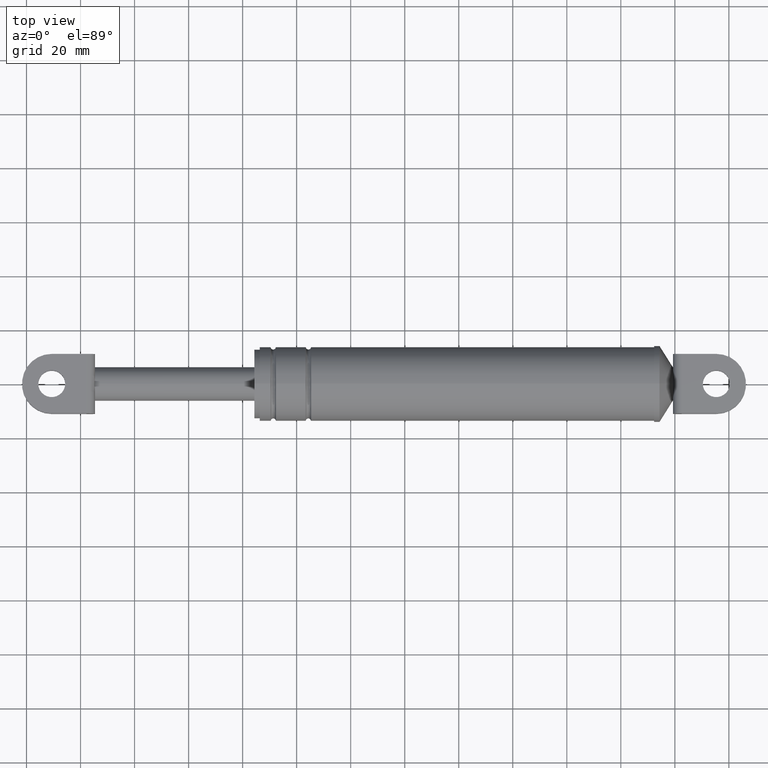
[diagram: clean part render]
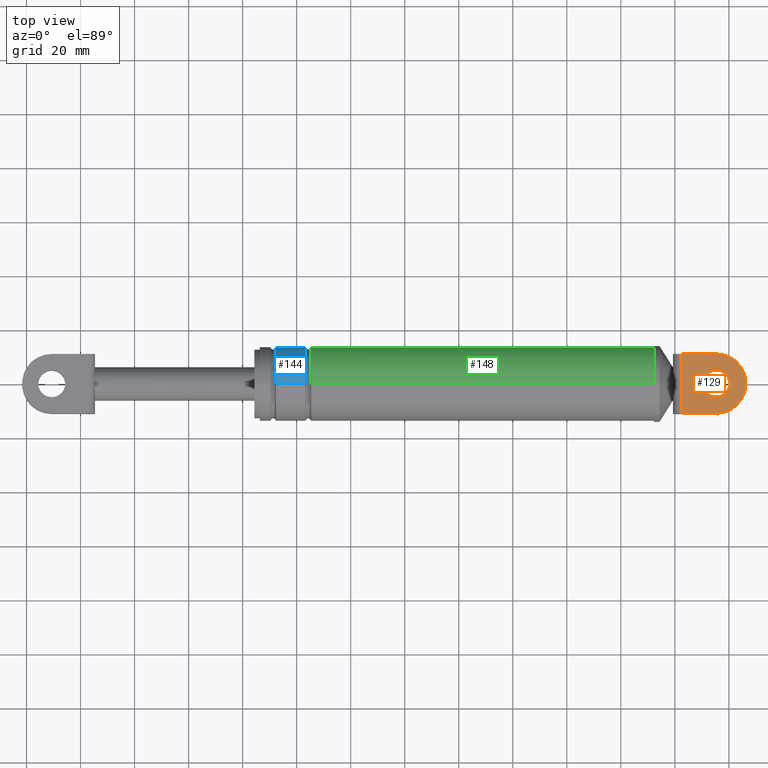
[diagram: same view with three faces highlighted in distinct colors, each labeled with its STEP entity id]
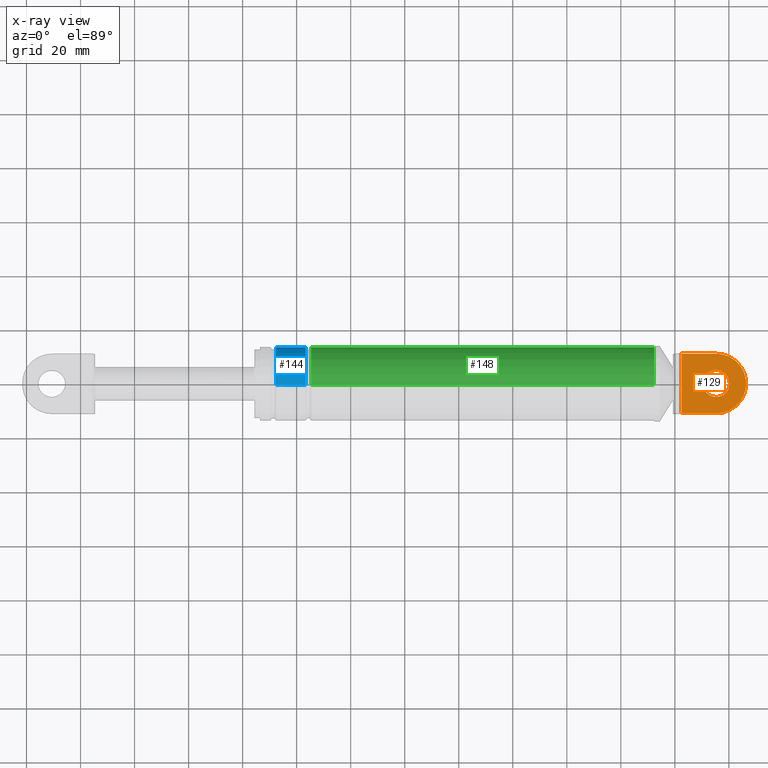
[diagram: x-ray of the same camera — body ghosted, the three highlighted faces saturated]
A machine part, top view with three faces highlighted in distinct colors.
The next image is the same camera in x-ray (body ghosted, the three faces saturated) — at least one of them is partly hidden behind the body in this view.
Their STEP definitions:

[orange] entity #129 — the highlighted planar face has unit normal (0, 0, 1).
#129=ADVANCED_FACE('',(#350,#351),#349,.T.);
#349=PLANE('',#1325);
#350=FACE_OUTER_BOUND('',#1326,.T.);
#351=FACE_BOUND('',#1327,.T.);
#1322=CARTESIAN_POINT('',(3.48715894405E+002,-1.32000011519E+001,1.28520539859E+002));
#1323=DIRECTION('',(0.00000000000E+000,-0.00000000000E+000,1.00000000000E+000));
#1324=DIRECTION('',(0.00000000000E+000,1.00000000000E+000,0.00000000000E+000));
#1325=AXIS2_PLACEMENT_3D('',#1322,#1323,#1324);
#1326=EDGE_LOOP('',(#2051,#2052,#2053,#2054,#2055,#2056));
#1327=EDGE_LOOP('',(#2057,#2058));
#2051=ORIENTED_EDGE('',*,*,#2309,.F.);
#2052=ORIENTED_EDGE('',*,*,#2333,.T.);
#2053=ORIENTED_EDGE('',*,*,#2328,.T.);
#2054=ORIENTED_EDGE('',*,*,#2325,.T.);
#2055=ORIENTED_EDGE('',*,*,#2303,.T.);
#2056=ORIENTED_EDGE('',*,*,#2336,.T.);
#2057=ORIENTED_EDGE('',*,*,#2339,.F.);
#2058=ORIENTED_EDGE('',*,*,#2340,.F.);
#2303=EDGE_CURVE('',#2588,#2581,#2589,.T.);
#2309=EDGE_CURVE('',#2623,#2630,#2631,.T.);
#2325=EDGE_CURVE('',#2738,#2588,#2739,.T.);
#2328=EDGE_CURVE('',#2758,#2738,#2759,.T.);
#2333=EDGE_CURVE('',#2623,#2758,#2791,.T.);
#2336=EDGE_CURVE('',#2581,#2630,#2809,.T.);
#2339=EDGE_CURVE('',#2827,#2828,#2829,.T.);
#2340=EDGE_CURVE('',#2828,#2827,#2835,.T.);
#2581=VERTEX_POINT('',#3567);
#2588=VERTEX_POINT('',#3571);
#2589=LINE('',#3572,#3573);
#2623=VERTEX_POINT('',#3593);
#2630=VERTEX_POINT('',#3598);
#2631=LINE('',#3599,#3600);
#2738=VERTEX_POINT('',#3668);
#2739=LINE('',#3669,#3670);
#2758=VERTEX_POINT('',#3680);
#2759=(BOUNDED_CURVE() B_SPLINE_CURVE(3,(#3681,#3682,#3683,#3684,#3685,#3686,#3687,#3688,#3689,#3690),.UNSPECIFIED.,.F.,.F.) B_SPLINE_CURVE_WITH_KNOTS((4,2,2,2,4),(0.00000000000E+000,1.21207515280E-003,2.42415030559E-003,3.63622545839E-003,4.84830061118E-003),.UNSPECIFIED.) CURVE() GEOMETRIC_REPRESENTATION_ITEM() RATIONAL_B_SPLINE_CURVE((1.00000000000E+000,1.00000000000E+000,1.00000000000E+000,1.00000000000E+000,1.00000000000E+000,1.00000000000E+000,1.00000000000E+000,1.00000000000E+000,1.00000000000E+000,1.00000000000E+000)) REPRESENTATION_ITEM('') );
#2791=LINE('',#3708,#3709);
#2809=CIRCLE('',#3722,1.10000000000E+001);
#2827=VERTEX_POINT('',#3731);
#2828=VERTEX_POINT('',#3732);
#2829=CIRCLE('',#3736,5.00000000000E+000);
#2835=CIRCLE('',#3740,5.00000000000E+000);
#3567=CARTESIAN_POINT('',(3.35331796069E+002,-1.10000000000E+001,1.28520539859E+002));
#3571=CARTESIAN_POINT('',(3.22531797029E+002,-1.10000000000E+001,1.28520539859E+002));
#3572=CARTESIAN_POINT('',(3.22531797029E+002,-1.10000000000E+001,1.28520539859E+002));
#3573=VECTOR('',#3574,1.27999990401E+001);
#3574=DIRECTION('',(1.00000000000E+000,0.00000000000E+000,0.00000000000E+000));
#3593=CARTESIAN_POINT('',(3.22531797029E+002,1.10000000000E+001,1.28520539859E+002));
#3598=CARTESIAN_POINT('',(3.35331796069E+002,1.10000000000E+001,1.28520539859E+002));
#3599=CARTESIAN_POINT('',(3.22531797029E+002,1.10000000000E+001,1.28520539859E+002));
#3600=VECTOR('',#3601,1.27999990401E+001);
#3601=DIRECTION('',(1.00000000000E+000,0.00000000000E+000,0.00000000000E+000));
#3668=CARTESIAN_POINT('',(3.22531797029E+002,-2.42391066068E+000,1.28520539859E+002));
#3669=CARTESIAN_POINT('',(3.22531797029E+002,-2.42391066068E+000,1.28520539859E+002));
#3670=VECTOR('',#3671,8.57608933932E+000);
#3671=DIRECTION('',(0.00000000000E+000,-1.00000000000E+000,0.00000000000E+000));
#3680=CARTESIAN_POINT('',(3.22531797029E+002,2.42391066068E+000,1.28520539859E+002));
#3681=CARTESIAN_POINT('',(3.22531797029E+002,2.42391066068E+000,1.28520539859E+002));
#3682=CARTESIAN_POINT('',(3.22531797029E+002,2.01983373493E+000,1.28520539859E+002));
#3683=CARTESIAN_POINT('',(3.22519690399E+002,1.61595082018E+000,1.28520539859E+002));
#3684=CARTESIAN_POINT('',(3.22498983566E+002,8.08128799520E-001,1.28520539859E+002));
#3685=CARTESIAN_POINT('',(3.22490825770E+002,4.04182603972E-001,1.28520539859E+002));
#3686=CARTESIAN_POINT('',(3.22490823261E+002,-4.03971207306E-001,1.28520539859E+002));
#3687=CARTESIAN_POINT('',(3.22498980300E+002,-8.07992361936E-001,1.28520539859E+002));
#3688=CARTESIAN_POINT('',(3.22519688236E+002,-1.61587544957E+000,1.28520539859E+002));
#3689=CARTESIAN_POINT('',(3.22531797029E+002,-2.01978594962E+000,1.28520539859E+002));
#3690=CARTESIAN_POINT('',(3.22531797029E+002,-2.42391066068E+000,1.28520539859E+002));
#3708=CARTESIAN_POINT('',(3.22531797029E+002,1.10000000000E+001,1.28520539859E+002));
#3709=VECTOR('',#3710,8.57608933932E+000);
#3710=DIRECTION('',(0.00000000000E+000,-1.00000000000E+000,0.00000000000E+000));
#3719=CARTESIAN_POINT('',(3.35331797029E+002,0.00000000000E+000,1.28520539859E+002));
#3720=DIRECTION('',(9.13508299739E-016,-7.97186270143E-023,1.00000000000E+000));
#3721=DIRECTION('',(-8.72664508346E-008,-1.00000000000E+000,1.11868806813E-031));
#3722=AXIS2_PLACEMENT_3D('',#3719,#3720,#3721);
#3731=CARTESIAN_POINT('',(3.30331797029E+002,-5.92118946467E-016,1.28520539859E+002));
#3732=CARTESIAN_POINT('',(3.40331797029E+002,-6.12323399574E-016,1.28520539859E+002));
#3733=CARTESIAN_POINT('',(3.35331797029E+002,-3.06161699787E-016,1.28520539859E+002));
#3734=DIRECTION('',(-1.23051628678E-031,2.00971834712E-015,1.00000000000E+000));
#3735=DIRECTION('',(1.00000000000E+000,6.12282954249E-017,-0.00000000000E+000));
#3736=AXIS2_PLACEMENT_3D('',#3733,#3734,#3735);
#3737=CARTESIAN_POINT('',(3.35331797029E+002,-3.06161699787E-016,1.28520539859E+002));
#3738=DIRECTION('',(-1.23051628678E-031,2.00971834712E-015,1.00000000000E+000));
#3739=DIRECTION('',(1.00000000000E+000,6.12282954249E-017,-0.00000000000E+000));
#3740=AXIS2_PLACEMENT_3D('',#3737,#3738,#3739);

[blue] entity #144 — the highlighted cylindrical surface (partial cylindrical patch) has radius 13.7 mm, axis along (-1, 0, 0).
#144=ADVANCED_FACE('',(#503),#502,.T.);
#502=CYLINDRICAL_SURFACE('',#1477,1.37000000000E+001);
#503=FACE_OUTER_BOUND('',#1478,.T.);
#1474=CARTESIAN_POINT('',(1.71231797029E+002,6.37158320696E-015,1.19820542859E+002));
#1475=DIRECTION('',(-1.00000000000E+000,1.46694769862E-015,3.54452212500E-031));
#1476=DIRECTION('',(1.03669887834E-030,4.65079066202E-016,1.00000000000E+000));
#1477=AXIS2_PLACEMENT_3D('',#1474,#1475,#1476);
#1478=EDGE_LOOP('',(#2125,#2126,#2127,#2128));
#2125=ORIENTED_EDGE('',*,*,#2360,.F.);
#2126=ORIENTED_EDGE('',*,*,#2363,.F.);
#2127=ORIENTED_EDGE('',*,*,#2364,.T.);
#2128=ORIENTED_EDGE('',*,*,#2365,.T.);
#2360=EDGE_CURVE('',#2957,#2964,#2965,.T.);
#2363=EDGE_CURVE('',#2983,#2957,#2984,.T.);
#2364=EDGE_CURVE('',#2983,#2990,#2991,.T.);
#2365=EDGE_CURVE('',#2990,#2964,#2997,.T.);
#2957=VERTEX_POINT('',#3801);
#2964=VERTEX_POINT('',#3807);
#2965=CIRCLE('',#3811,1.37000000000E+001);
#2983=VERTEX_POINT('',#3823);
#2984=(BOUNDED_CURVE() B_SPLINE_CURVE(1,(#3824,#3825),.UNSPECIFIED.,.F.,.F.) B_SPLINE_CURVE_WITH_KNOTS((2,2),(8.33333343261E-002,9.16666667006E-001),.UNSPECIFIED.) CURVE() GEOMETRIC_REPRESENTATION_ITEM() RATIONAL_B_SPLINE_CURVE((1.00000000000E+000,1.00000000000E+000)) REPRESENTATION_ITEM('') );
#2990=VERTEX_POINT('',#3826);
#2991=CIRCLE('',#3830,1.37000000000E+001);
#2997=(BOUNDED_CURVE() B_SPLINE_CURVE(1,(#3831,#3832),.UNSPECIFIED.,.F.,.F.) B_SPLINE_CURVE_WITH_KNOTS((2,2),(8.33333333333E-002,9.16666666667E-001),.UNSPECIFIED.) CURVE() GEOMETRIC_REPRESENTATION_ITEM() RATIONAL_B_SPLINE_CURVE((7.50000000000E-001,7.50000000000E-001)) REPRESENTATION_ITEM('') );
#3801=CARTESIAN_POINT('',(1.72331797029E+002,2.30926389122E-014,1.33520542859E+002));
#3807=CARTESIAN_POINT('',(1.72331797029E+002,7.52689430633E-015,1.06120542859E+002));
#3808=CARTESIAN_POINT('',(1.72331797029E+002,1.12117697108E-014,1.19820542859E+002));
#3809=DIRECTION('',(-1.00000000000E+000,0.00000000000E+000,0.00000000000E+000));
#3810=DIRECTION('',(-0.00000000000E+000,-8.35518852861E-016,-1.00000000000E+000));
#3811=AXIS2_PLACEMENT_3D('',#3808,#3809,#3810);
#3823=CARTESIAN_POINT('',(1.83331797029E+002,-5.32907051820E-015,1.33520542859E+002));
#3824=CARTESIAN_POINT('',(1.83331797016E+002,-5.00690072020E-015,1.33520542859E+002));
#3825=CARTESIAN_POINT('',(1.72331797024E+002,1.11295239520E-014,1.33520542859E+002));
#3826=CARTESIAN_POINT('',(1.83331797029E+002,7.52689430633E-015,1.06120542859E+002));
#3827=CARTESIAN_POINT('',(1.83331797029E+002,1.12117697108E-014,1.19820542859E+002));
#3828=DIRECTION('',(-1.00000000000E+000,1.46694769862E-015,1.38016011913E-030));
#3829=DIRECTION('',(-2.60582257749E-030,-8.35518852861E-016,-1.00000000000E+000));
#3830=AXIS2_PLACEMENT_3D('',#3827,#3828,#3829);
#3831=CARTESIAN_POINT('',(1.83331797029E+002,-1.85037170771E-014,1.06120542859E+002));
#3832=CARTESIAN_POINT('',(1.72331797029E+002,-2.22044604925E-015,1.06120542859E+002));

[green] entity #148 — the highlighted cylindrical surface (partial cylindrical patch) has radius 13.7 mm, axis along (-1, -0, -0).
#148=ADVANCED_FACE('',(#543),#542,.T.);
#542=CYLINDRICAL_SURFACE('',#1559,1.37000000000E+001);
#543=FACE_OUTER_BOUND('',#1560,.T.);
#1556=CARTESIAN_POINT('',(1.75331797029E+002,-1.11130927453E-013,1.19820542859E+002));
#1557=DIRECTION('',(-1.00000000000E+000,-1.46694769862E-015,-3.54452212500E-031));
#1558=DIRECTION('',(1.15450556906E-029,-8.11174652940E-015,1.00000000000E+000));
#1559=AXIS2_PLACEMENT_3D('',#1556,#1557,#1558);
#1560=EDGE_LOOP('',(#2141,#2142,#2143,#2144));
#2141=ORIENTED_EDGE('',*,*,#2368,.F.);
#2142=ORIENTED_EDGE('',*,*,#2371,.F.);
#2143=ORIENTED_EDGE('',*,*,#2315,.T.);
#2144=ORIENTED_EDGE('',*,*,#2372,.T.);
#2315=EDGE_CURVE('',#2670,#2671,#2672,.T.);
#2368=EDGE_CURVE('',#3009,#3016,#3017,.T.);
#2371=EDGE_CURVE('',#2670,#3009,#3035,.T.);
#2372=EDGE_CURVE('',#2671,#3016,#3041,.T.);
#2670=VERTEX_POINT('',#3622);
#2671=VERTEX_POINT('',#3623);
#2672=CIRCLE('',#3627,1.37000000000E+001);
#3009=VERTEX_POINT('',#3837);
#3016=VERTEX_POINT('',#3843);
#3017=CIRCLE('',#3847,1.37000000000E+001);
#3035=(BOUNDED_CURVE() B_SPLINE_CURVE(1,(#3859,#3860),.UNSPECIFIED.,.F.,.F.) B_SPLINE_CURVE_WITH_KNOTS((2,2),(6.80272107940E-002,9.31972788954E-001),.UNSPECIFIED.) CURVE() GEOMETRIC_REPRESENTATION_ITEM() RATIONAL_B_SPLINE_CURVE((1.00000000000E+000,1.00000000000E+000)) REPRESENTATION_ITEM('') );
#3041=(BOUNDED_CURVE() B_SPLINE_CURVE(1,(#3861,#3862),.UNSPECIFIED.,.F.,.F.) B_SPLINE_CURVE_WITH_KNOTS((2,2),(6.80272108844E-002,9.31972789116E-001),.UNSPECIFIED.) CURVE() GEOMETRIC_REPRESENTATION_ITEM() RATIONAL_B_SPLINE_CURVE((7.50000000000E-001,7.50000000000E-001)) REPRESENTATION_ITEM('') );
#3622=CARTESIAN_POINT('',(3.12331797029E+002,2.30926389122E-014,1.33520542859E+002));
#3623=CARTESIAN_POINT('',(3.12331797029E+002,7.52689430633E-015,1.06120542859E+002));
#3624=CARTESIAN_POINT('',(3.12331797029E+002,1.12117697108E-014,1.19820542859E+002));
#3625=DIRECTION('',(-1.00000000000E+000,1.46694769862E-015,1.38016011913E-030));
#3626=DIRECTION('',(-2.60582257749E-030,-8.35518852861E-016,-1.00000000000E+000));
#3627=AXIS2_PLACEMENT_3D('',#3624,#3625,#3626);
#3837=CARTESIAN_POINT('',(1.85331797029E+002,2.30926389122E-014,1.33520542859E+002));
#3843=CARTESIAN_POINT('',(1.85331797029E+002,7.52689430633E-015,1.06120542859E+002));
#3844=CARTESIAN_POINT('',(1.85331797029E+002,1.12117697108E-014,1.19820542859E+002));
#3845=DIRECTION('',(-1.00000000000E+000,-7.33473849312E-016,-6.90080059566E-031));
#3846=DIRECTION('',(1.30291128875E-030,-8.35518852861E-016,-1.00000000000E+000));
#3847=AXIS2_PLACEMENT_3D('',#3844,#3845,#3846);
#3859=CARTESIAN_POINT('',(3.12331797042E+002,-2.12900201747E-014,1.33520542859E+002));
#3860=CARTESIAN_POINT('',(1.85331797052E+002,-2.07592377885E-013,1.33520542859E+002));
#3861=CARTESIAN_POINT('',(3.12331797029E+002,2.00869303554E-013,1.06120542859E+002));
#3862=CARTESIAN_POINT('',(1.85331797029E+002,1.46619929601E-014,1.06120542859E+002));